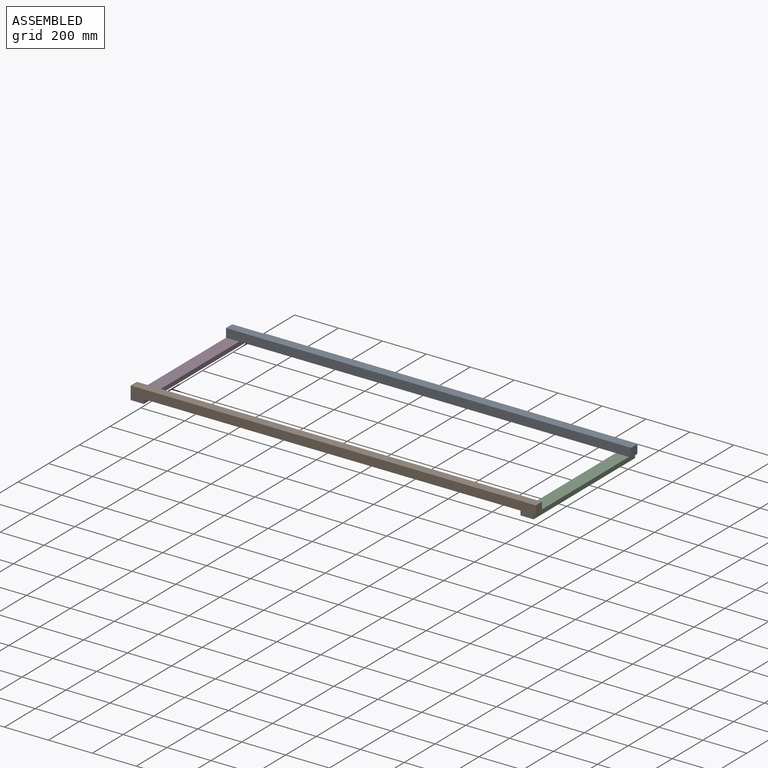
[diagram: assembled view]
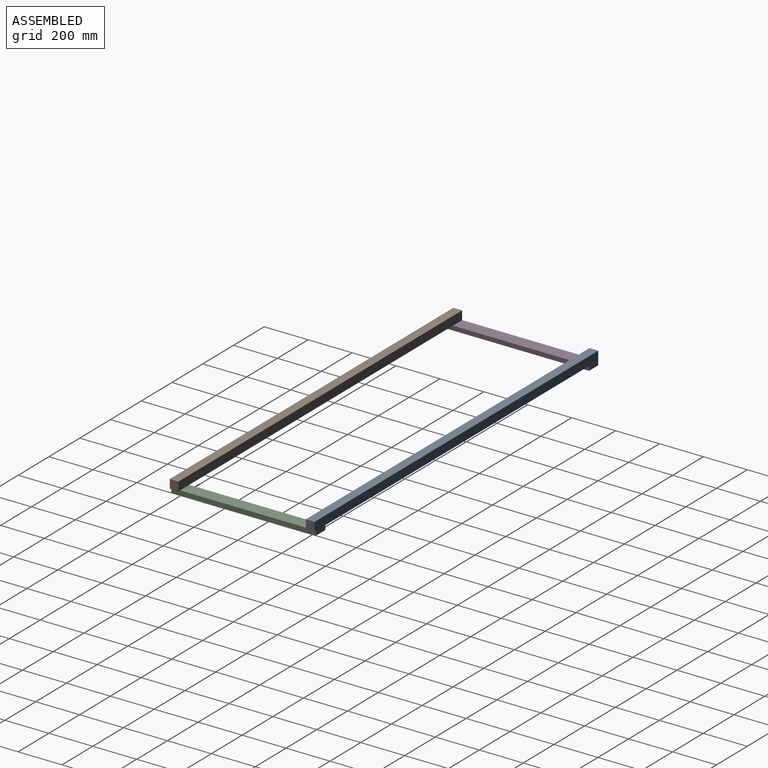
[diagram: assembled view, second angle]
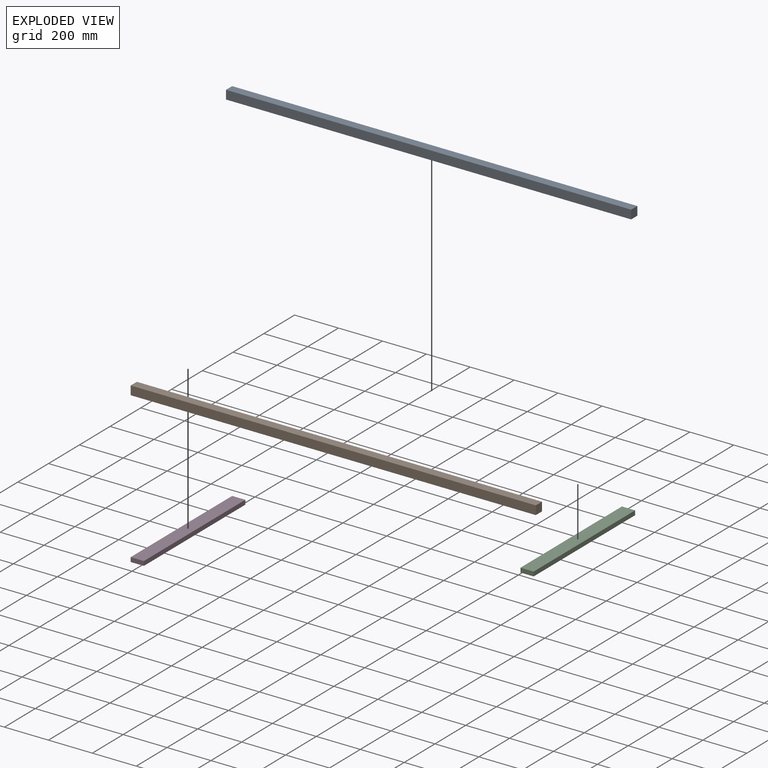
[diagram: exploded view]
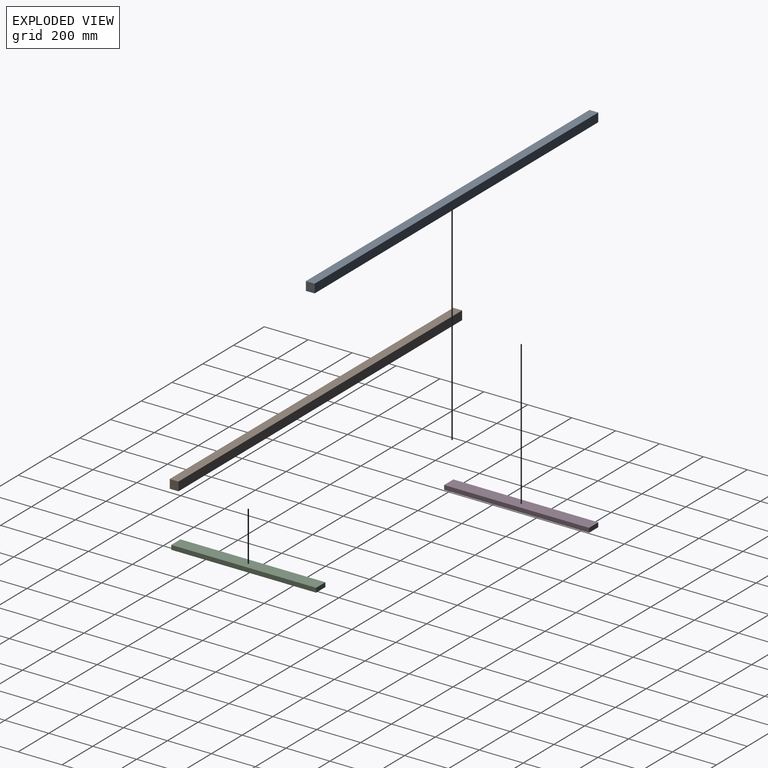
[diagram: exploded view, second angle]
ASSEMBLY  parts=4 mates=3
PART A: 6 faces, bbox 40x1845x40 mm
  f0: plane 1845x40mm, normal (-1,0,0), area 73800mm2, adj f1,f3,f4,f5
  f1: plane 1845x40mm, normal (0,0,-1), area 73800mm2, adj f0,f2,f4,f5
  f2: plane 1845x40mm, normal (1,0,0), area 73800mm2, adj f1,f3,f4,f5
  f3: plane 1845x40mm, normal (0,0,1), area 73800mm2, adj f0,f2,f4,f5
  f4: plane 40x40mm, normal (0,1,0), area 1600mm2, adj f0,f1,f2,f3
  f5: plane 40x40mm, normal (0,-1,0), area 1600mm2, adj f0,f1,f2,f3
PART B: same geometry as A
PART C: 6 faces, bbox 60x660x20 mm
  f0: plane 660x20mm, normal (-1,0,0), area 13200mm2, adj f1,f3,f4,f5
  f1: plane 660x60mm, normal (0,0,-1), area 39600mm2, adj f0,f2,f4,f5
  f2: plane 660x20mm, normal (1,0,0), area 13200mm2, adj f1,f3,f4,f5
  f3: plane 660x60mm, normal (0,0,1), area 39600mm2, adj f0,f2,f4,f5
  f4: plane 60x20mm, normal (0,1,0), area 1200mm2, adj f0,f1,f2,f3
  f5: plane 60x20mm, normal (0,-1,0), area 1200mm2, adj f0,f1,f2,f3
PART D: same geometry as C
PLACE A rot(axis=(0,0,1),90deg) t=(230.99,432,87.6)mm
PLACE B rot(axis=(0,0,1),90deg) t=(230.99,-188,87.6)mm
PLACE C t=(160.99,-188,67.6)mm
PLACE D t=(-1614.01,-188,67.6)mm
MATE fastened D.f3 <-> B.f1  axis (0,0,1) through (-1554.01,-188,87.6)mm
MATE fastened B.f1 <-> C.f3  axis (0,0,1) through (230.99,-188,87.6)mm
MATE fastened A.f1 <-> C.f3  axis (0,0,1) through (230.99,472,87.6)mm
